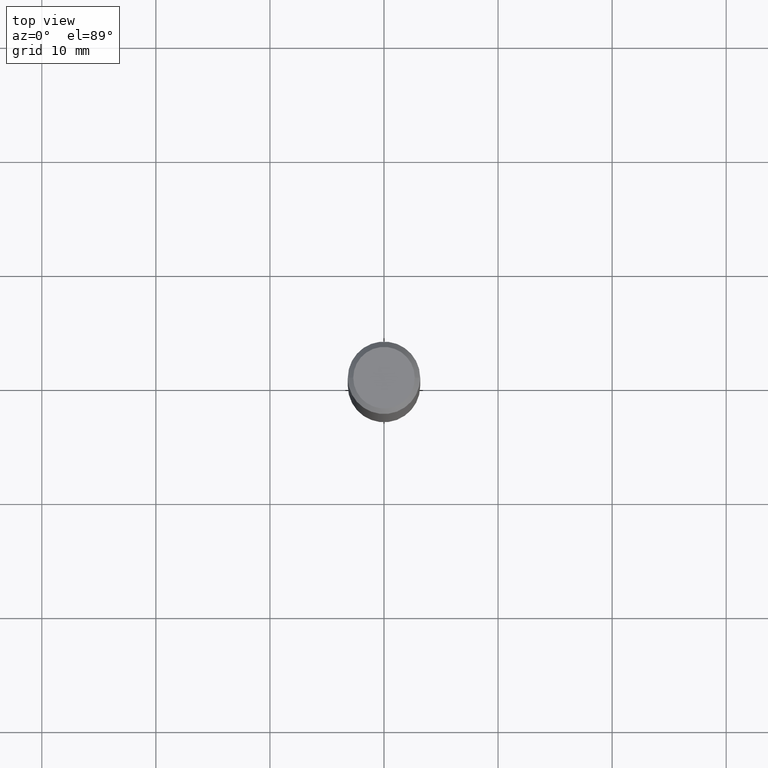
[diagram: clean part render]
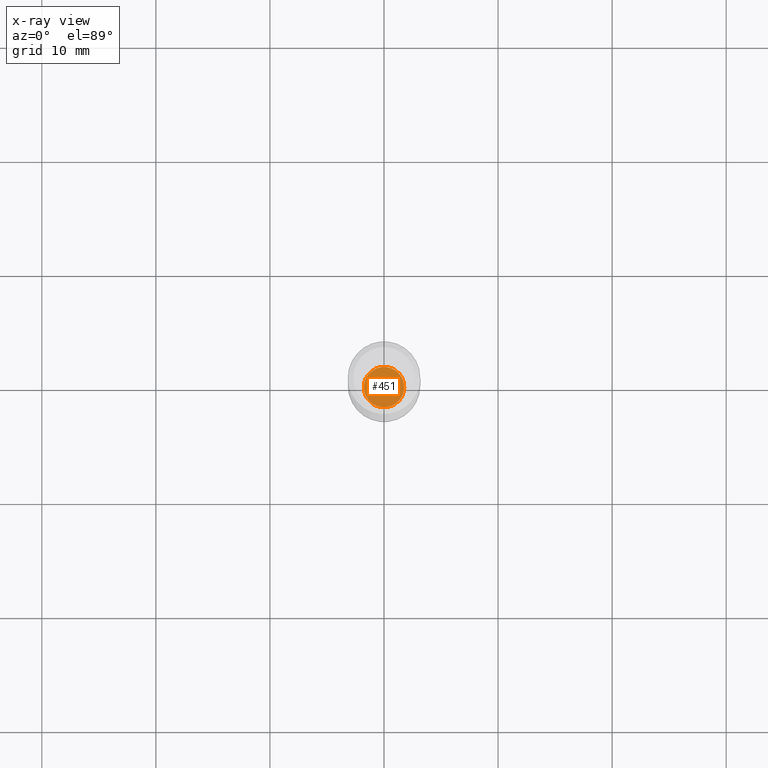
[diagram: x-ray — body ghosted, one internal face saturated and labeled with its STEP entity id]
A machine part, top view, then the same camera in x-ray: the body is ghosted and one INTERNAL B-rep face — a face not visible from any outside direction — is saturated and labeled: STEP entity #451.
In plain terms, the highlighted planar face has unit normal (-0, 0, 1).
Its self-contained STEP definition (entity closure, byte-faithful):
#4 = VERTEX_POINT ( 'NONE', #352 ) ;
#35 = CARTESIAN_POINT ( 'NONE',  ( 4.623403324973620023E-29, -6.600994619216851985E-15, -1.890600000000000280 ) ) ;
#58 = AXIS2_PLACEMENT_3D ( 'NONE', #122, #129, #281 ) ;
#110 = EDGE_CURVE ( 'NONE', #4, #194, #206, .T. ) ;
#122 = CARTESIAN_POINT ( 'NONE',  ( 4.623403324973620023E-29, -6.600994619216851985E-15, -1.890600000000000280 ) ) ;
#129 = DIRECTION ( 'NONE',  ( -2.438088387897960049E-29, 3.491481338843145188E-15, 1.000000000000000000 ) ) ;
#153 = DIRECTION ( 'NONE',  ( -2.445468806185136597E-29, 3.491481338843145583E-15, 1.000000000000000000 ) ) ;
#175 = EDGE_CURVE ( 'NONE', #194, #4, #348, .T. ) ;
#182 = DIRECTION ( 'NONE',  ( 1.000000000000000000, -6.982962677686271444E-15, 0.000000000000000000 ) ) ;
#194 = VERTEX_POINT ( 'NONE', #229 ) ;
#206 = CIRCLE ( 'NONE', #367, 0.06980000000000000093 ) ;
#228 = ORIENTED_EDGE ( 'NONE', *, *, #175, .F. ) ;
#229 = CARTESIAN_POINT ( 'NONE',  ( -0.06980000000000000093, -6.102386562482190256E-15, -1.890600000000000280 ) ) ;
#268 = EDGE_LOOP ( 'NONE', ( #464, #228 ) ) ;
#281 = DIRECTION ( 'NONE',  ( 1.000000000000000000, -6.982962677686265922E-15, 4.876176775795935793E-29 ) ) ;
#337 = AXIS2_PLACEMENT_3D ( 'NONE', #379, #153, #340 ) ;
#340 = DIRECTION ( 'NONE',  ( 1.000000000000000000, -6.982962677686271444E-15, 0.000000000000000000 ) ) ;
#348 = CIRCLE ( 'NONE', #337, 0.06980000000000000093 ) ;
#352 = CARTESIAN_POINT ( 'NONE',  ( 0.06980000000000000093, -7.088405414119353136E-15, -1.890600000000000280 ) ) ;
#353 = PLANE ( 'NONE',  #58 ) ;
#367 = AXIS2_PLACEMENT_3D ( 'NONE', #35, #486, #182 ) ;
#379 = CARTESIAN_POINT ( 'NONE',  ( 4.623403324973620023E-29, -6.600994619216851985E-15, -1.890600000000000280 ) ) ;
#439 = FACE_OUTER_BOUND ( 'NONE', #268, .T. ) ;
#451 = ADVANCED_FACE ( 'NONE', ( #439 ), #353, .F. ) ;
#464 = ORIENTED_EDGE ( 'NONE', *, *, #110, .F. ) ;
#486 = DIRECTION ( 'NONE',  ( -2.445468806185136597E-29, 3.491481338843145583E-15, 1.000000000000000000 ) ) ;